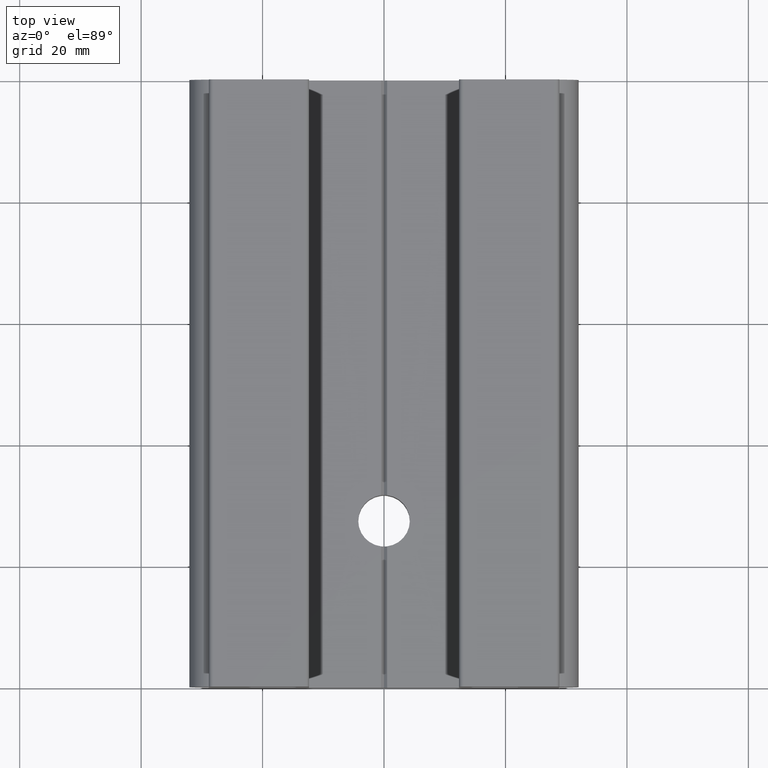
[diagram: clean part render]
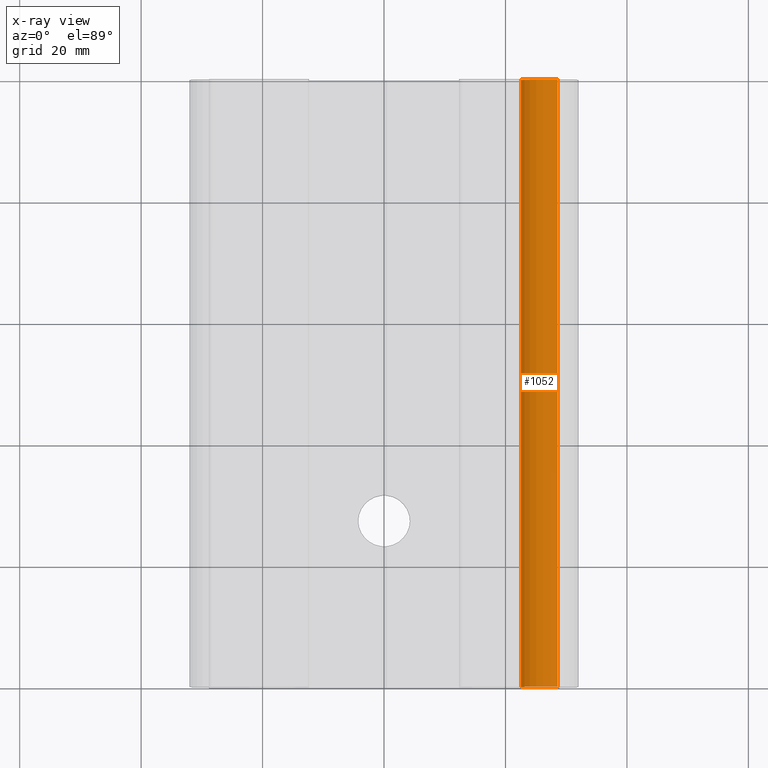
[diagram: x-ray — body ghosted, one internal face saturated and labeled with its STEP entity id]
A machine part, top view, then the same camera in x-ray: the body is ghosted and one INTERNAL B-rep face — a face not visible from any outside direction — is saturated and labeled: STEP entity #1052.
In plain terms, the highlighted cylindrical surface (edge-blend (fillet) strip) has radius 5 mm, axis along (0, 1, 0).
Its self-contained STEP definition (entity closure, byte-faithful):
#96=FACE_OUTER_BOUND('',#150,.T.);
#150=EDGE_LOOP('',(#921,#922,#923,#924));
#250=LINE('',#1878,#346);
#251=LINE('',#1880,#347);
#346=VECTOR('',#1535,10.);
#347=VECTOR('',#1538,10.);
#379=CIRCLE('',#1180,5.);
#399=CIRCLE('',#1205,5.);
#470=VERTEX_POINT('',#1715);
#471=VERTEX_POINT('',#1717);
#502=VERTEX_POINT('',#1791);
#503=VERTEX_POINT('',#1793);
#582=EDGE_CURVE('',#470,#471,#379,.T.);
#621=EDGE_CURVE('',#502,#503,#399,.T.);
#664=EDGE_CURVE('',#503,#470,#250,.T.);
#665=EDGE_CURVE('',#502,#471,#251,.T.);
#921=ORIENTED_EDGE('',*,*,#664,.F.);
#922=ORIENTED_EDGE('',*,*,#621,.F.);
#923=ORIENTED_EDGE('',*,*,#665,.T.);
#924=ORIENTED_EDGE('',*,*,#582,.F.);
#1007=CYLINDRICAL_SURFACE('',#1239,5.);
#1052=ADVANCED_FACE('',(#96),#1007,.F.);
#1180=AXIS2_PLACEMENT_3D('',#1718,#1367,#1368);
#1205=AXIS2_PLACEMENT_3D('',#1794,#1436,#1437);
#1239=AXIS2_PLACEMENT_3D('',#1879,#1536,#1537);
#1367=DIRECTION('center_axis',(0.,-1.,0.));
#1368=DIRECTION('ref_axis',(-0.307692307692299,0.,-0.951485913604078));
#1436=DIRECTION('center_axis',(0.,1.,0.));
#1437=DIRECTION('ref_axis',(1.,0.,0.));
#1535=DIRECTION('',(0.,1.,0.));
#1536=DIRECTION('center_axis',(0.,1.,0.));
#1537=DIRECTION('ref_axis',(-0.40239095973715,0.,0.91546792162359));
#1538=DIRECTION('',(0.,1.,0.));
#1715=CARTESIAN_POINT('',(28.5884615384615,100.,17.2574295680204));
#1717=CARTESIAN_POINT('',(22.5047032855685,100.,14.5833333333333));
#1718=CARTESIAN_POINT('Origin',(27.05,100.,12.5));
#1791=CARTESIAN_POINT('',(22.5047032855685,0.,14.5833333333333));
#1793=CARTESIAN_POINT('',(28.5884615384615,0.,17.2574295680204));
#1794=CARTESIAN_POINT('Origin',(27.05,0.,12.5));
#1878=CARTESIAN_POINT('',(28.5884615384615,0.,17.2574295680204));
#1879=CARTESIAN_POINT('Origin',(27.05,10.,12.5));
#1880=CARTESIAN_POINT('',(22.5047032855685,0.,14.5833333333333));